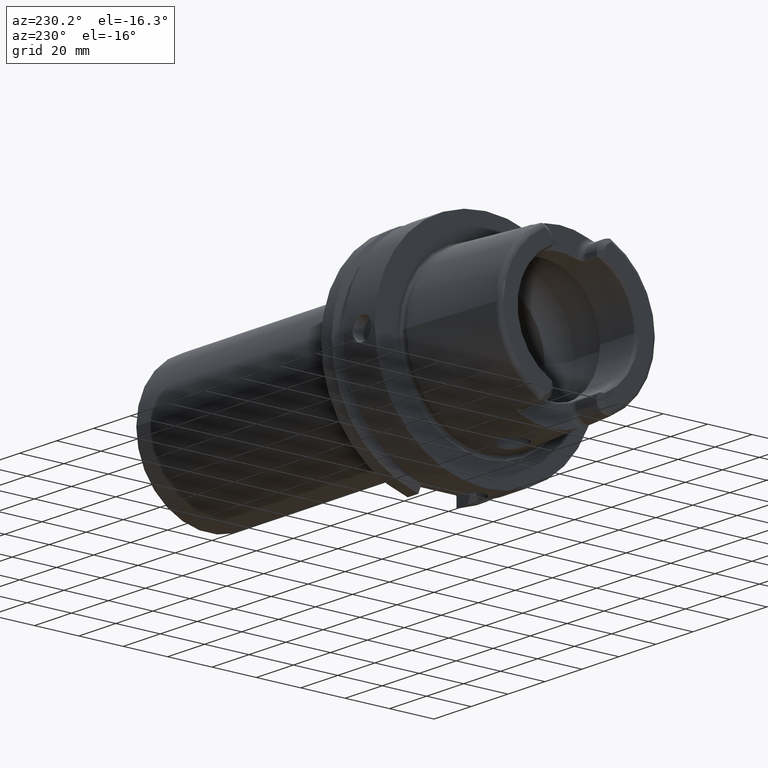
[diagram: clean part render]
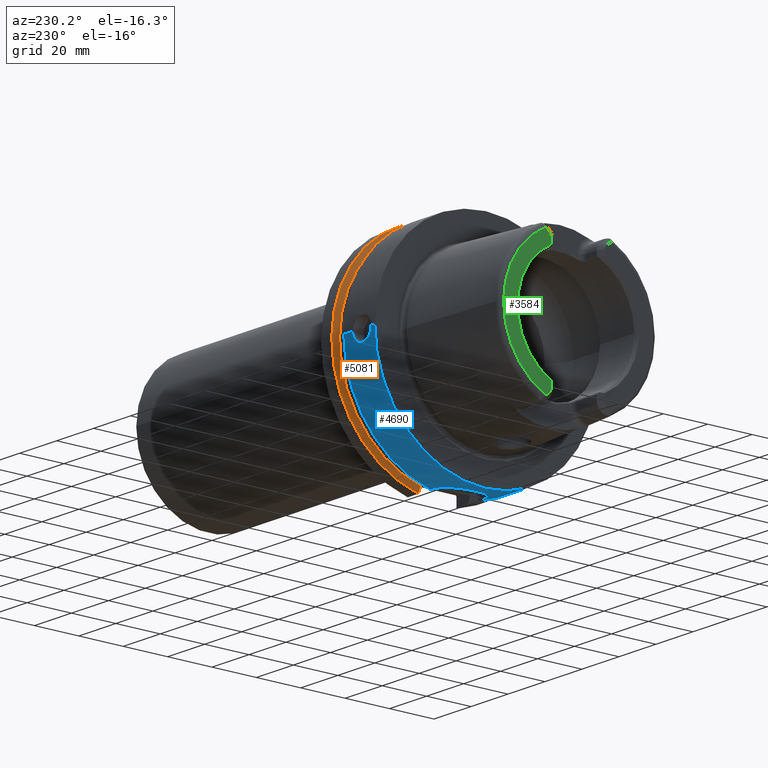
[diagram: same view with three faces highlighted in distinct colors, each labeled with its STEP entity id]
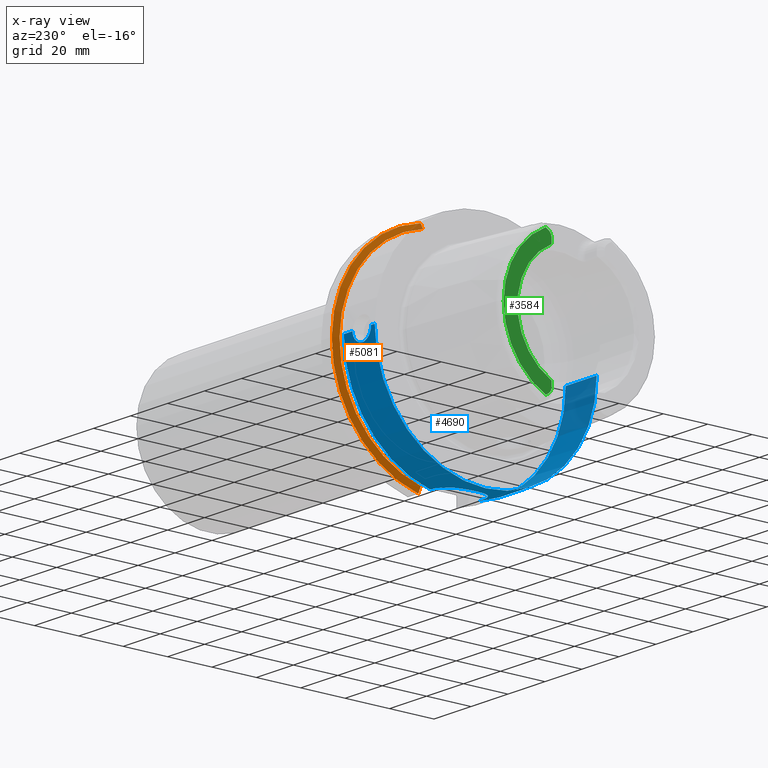
[diagram: x-ray of the same camera — body ghosted, the three highlighted faces saturated]
A machine part, auxiliary view with three faces highlighted in distinct colors.
The next image is the same camera in x-ray (body ghosted, the three faces saturated) — at least one of them is partly hidden behind the body in this view.
Their STEP definitions:

[orange] entity #5081 — the highlighted conical surface has half-angle 60 deg.
#1646=CARTESIAN_POINT('',(2.324759526419E1,1.1E1,-4.877499359303E1));
#1647=CARTESIAN_POINT('',(2.309075618244E1,1.1E1,-4.849651763825E1));
#1648=CARTESIAN_POINT('',(2.277996511889E1,1.1E1,-4.794446101512E1));
#1649=CARTESIAN_POINT('',(2.232251548208E1,1.1E1,-4.713119970766E1));
#1650=CARTESIAN_POINT('',(2.202321854676E1,1.1E1,-4.659863454325E1));
#1651=CARTESIAN_POINT('',(2.1875E1,1.1E1,-4.633477721644E1));
#1653=CARTESIAN_POINT('',(2.324759526419E1,0.E0,0.E0));
#1654=DIRECTION('',(1.E0,0.E0,0.E0));
#1655=DIRECTION('',(0.E0,2.2E-1,-9.754998718606E-1));
#1656=AXIS2_PLACEMENT_3D('',#1653,#1654,#1655);
#1658=CARTESIAN_POINT('',(2.1875E1,1.E1,4.656083740331E1));
#1659=CARTESIAN_POINT('',(2.202341485415E1,1.E1,4.682376142925E1));
#1660=CARTESIAN_POINT('',(2.232297392293E1,1.E1,4.735424823675E1));
#1661=CARTESIAN_POINT('',(2.278043311037E1,1.E1,4.816377318979E1));
#1662=CARTESIAN_POINT('',(2.309095690730E1,1.E1,4.871289474479E1));
#1663=CARTESIAN_POINT('',(2.324759526419E1,1.E1,4.898979485566E1));
#1665=CARTESIAN_POINT('',(2.1875E1,0.E0,0.E0));
#1666=DIRECTION('',(-1.E0,0.E0,0.E0));
#1667=DIRECTION('',(0.E0,2.099843560504E-1,9.777047459300E-1));
#1668=AXIS2_PLACEMENT_3D('',#1665,#1666,#1667);
#3310=CARTESIAN_POINT('',(2.1875E1,1.E1,4.656083740331E1));
#3311=VERTEX_POINT('',#3310);
#3313=VERTEX_POINT('',#1663);
#3322=CARTESIAN_POINT('',(2.324759526419E1,1.1E1,-4.877499359303E1));
#3324=VERTEX_POINT('',#3322);
#3350=CARTESIAN_POINT('',(2.1875E1,1.1E1,-4.633477721644E1));
#3351=VERTEX_POINT('',#3350);
#5069=CARTESIAN_POINT('',(2.256129763210E1,0.E0,0.E0));
#5070=DIRECTION('',(1.E0,0.E0,0.E0));
#5071=DIRECTION('',(0.E0,-1.E0,0.E0));
#5072=AXIS2_PLACEMENT_3D('',#5069,#5070,#5071);
#5073=CONICAL_SURFACE('',#5072,4.881129763210E1,6.E1);
#5074=ORIENTED_EDGE('',*,*,#4700,.F.);
#5075=ORIENTED_EDGE('',*,*,#4631,.T.);
#5077=ORIENTED_EDGE('',*,*,#5076,.F.);
#5078=ORIENTED_EDGE('',*,*,#5033,.T.);
#5079=EDGE_LOOP('',(#5074,#5075,#5077,#5078));
#5080=FACE_OUTER_BOUND('',#5079,.F.);
#5081=ADVANCED_FACE('',(#5080),#5073,.T.);
#1652=B_SPLINE_CURVE_WITH_KNOTS('',3,(#1646,#1647,#1648,#1649,#1650,#1651),
.UNSPECIFIED.,.F.,.F.,(4,1,1,4),(0.E0,3.333333333333E-1,6.666666666667E-1,1.E0),
.UNSPECIFIED.);
#1657=CIRCLE('',#1656,5.E1);
#1664=B_SPLINE_CURVE_WITH_KNOTS('',3,(#1658,#1659,#1660,#1661,#1662,#1663),
.UNSPECIFIED.,.F.,.F.,(4,1,1,4),(0.E0,3.333333333333E-1,6.666666666667E-1,1.E0),
.UNSPECIFIED.);
#1669=CIRCLE('',#1668,4.762259526419E1);
#4631=EDGE_CURVE('',#3324,#3313,#1657,.T.);
#4700=EDGE_CURVE('',#3324,#3351,#1652,.T.);
#5033=EDGE_CURVE('',#3311,#3351,#1669,.T.);
#5076=EDGE_CURVE('',#3311,#3313,#1664,.T.);

[blue] entity #4690 — the highlighted cylindrical surface (partial cylindrical patch) has radius 50 mm, axis along (1, 0, 0).
#910=CARTESIAN_POINT('',(2.842170943040E-14,0.E0,0.E0));
#911=DIRECTION('',(-1.E0,0.E0,0.E0));
#912=DIRECTION('',(0.E0,1.E0,0.E0));
#913=AXIS2_PLACEMENT_3D('',#910,#911,#912);
#965=CARTESIAN_POINT('',(2.E0,5.E1,1.118758432857E-13));
#967=CARTESIAN_POINT('',(1.2E1,5.E1,2.305800131571E-14));
#1149=DIRECTION('',(1.E0,0.E0,0.E0));
#1150=VECTOR('',#1149,7.524047358084E-1);
#1151=CARTESIAN_POINT('',(1.6E1,1.1E1,-4.877499359303E1));
#1152=LINE('',#1151,#1150);
#1153=CARTESIAN_POINT('',(1.675240473581E1,0.E0,0.E0));
#1154=DIRECTION('',(1.E0,0.E0,0.E0));
#1155=DIRECTION('',(0.E0,2.2E-1,-9.754998718606E-1));
#1156=AXIS2_PLACEMENT_3D('',#1153,#1154,#1155);
#1158=DIRECTION('',(-1.E0,0.E0,0.E0));
#1159=VECTOR('',#1158,4.752404735808E0);
#1160=CARTESIAN_POINT('',(1.675240473581E1,5.E1,0.E0));
#1161=LINE('',#1160,#1159);
#1162=CARTESIAN_POINT('',(7.E0,4.974937185533E1,-5.E0));
#1163=CARTESIAN_POINT('',(7.214633369567E0,4.974937185533E1,-5.E0));
#1164=CARTESIAN_POINT('',(7.640386298435E0,4.975213065018E1,-4.972666360467E0));
#1165=CARTESIAN_POINT('',(8.274641361953E0,4.976438841384E1,-4.849158121706E0));
#1166=CARTESIAN_POINT('',(8.886020855356E0,4.978391945578E1,-4.645521380047E0));
#1167=CARTESIAN_POINT('',(9.464921805396E0,4.980935892457E1,-4.365866273701E0));
#1168=CARTESIAN_POINT('',(1.000148682294E1,4.983894625348E1,-4.016101899832E0));
#1169=CARTESIAN_POINT('',(1.049544382004E1,4.987128929303E1,-3.594954537167E0));
#1170=CARTESIAN_POINT('',(1.093328252566E1,4.990407345488E1,-3.109850358381E0));
#1171=CARTESIAN_POINT('',(1.130435342350E1,4.993485871418E1,-2.572130277900E0));
#1172=CARTESIAN_POINT('',(1.160677173349E1,4.996197754497E1,-1.981903060800E0));
#1173=CARTESIAN_POINT('',(1.183330662283E1,4.998349884815E1,-1.340220481854E0));
#1174=CARTESIAN_POINT('',(1.197044850157E1,4.999703119876E1,
-6.688359514011E-1));
#1175=CARTESIAN_POINT('',(1.2E1,5.E1,-2.237498970126E-1));
#1176=CARTESIAN_POINT('',(1.2E1,5.E1,2.305800131571E-14));
#1178=CARTESIAN_POINT('',(2.E0,5.E1,1.118758432857E-13));
#1179=CARTESIAN_POINT('',(2.E0,5.E1,-2.234702192277E-1));
#1180=CARTESIAN_POINT('',(2.029478359112E0,4.999703853190E1,
-6.681473837066E-1));
#1181=CARTESIAN_POINT('',(2.166444197694E0,4.998352324893E1,-1.339309249725E0));
#1182=CARTESIAN_POINT('',(2.392942530114E0,4.996200329443E1,-1.981343201711E0));
#1183=CARTESIAN_POINT('',(2.695842610324E0,4.993484130346E1,-2.572495925426E0));
#1184=CARTESIAN_POINT('',(3.066846855438E0,4.990406337793E1,-3.109998926782E0));
#1185=CARTESIAN_POINT('',(3.504802790907E0,4.987127154916E1,-3.595208944890E0));
#1186=CARTESIAN_POINT('',(3.998946554545E0,4.983891901808E1,-4.016442348510E0));
#1187=CARTESIAN_POINT('',(4.535798414476E0,4.980932338391E1,-4.366269177248E0));
#1188=CARTESIAN_POINT('',(5.114389528668E0,4.978390508543E1,-4.645671467419E0));
#1189=CARTESIAN_POINT('',(5.725653660578E0,4.976438108882E1,-4.849233183616E0));
#1190=CARTESIAN_POINT('',(6.359805679124E0,4.975212880871E1,-4.972684387731E0));
#1191=CARTESIAN_POINT('',(6.785436141585E0,4.974937185533E1,-5.E0));
#1192=CARTESIAN_POINT('',(7.E0,4.974937185533E1,-5.E0));
#1194=DIRECTION('',(-1.E0,0.E0,-5.389684364428E-14));
#1195=VECTOR('',#1194,2.E0);
#1196=CARTESIAN_POINT('',(2.E0,5.E1,1.118758432857E-13));
#1197=LINE('',#1196,#1195);
#1198=DIRECTION('',(-1.E0,0.E0,0.E0));
#1199=VECTOR('',#1198,1.675240473581E1);
#1200=CARTESIAN_POINT('',(1.675240473581E1,-5.E1,-1.020538999289E-14));
#1201=LINE('',#1200,#1199);
#1202=CARTESIAN_POINT('',(1.675240473581E1,0.E0,0.E0));
#1203=DIRECTION('',(1.E0,0.E0,0.E0));
#1204=DIRECTION('',(0.E0,-1.E0,0.E0));
#1205=AXIS2_PLACEMENT_3D('',#1202,#1203,#1204);
#1207=DIRECTION('',(1.E0,0.E0,0.E0));
#1208=VECTOR('',#1207,7.524047358084E-1);
#1209=CARTESIAN_POINT('',(1.6E1,-1.1E1,-4.877499359303E1));
#1210=LINE('',#1209,#1208);
#1211=CARTESIAN_POINT('',(1.6E1,1.1E1,-4.877499359303E1));
#1212=CARTESIAN_POINT('',(1.559018257905E1,1.1E1,-4.877499359303E1));
#1213=CARTESIAN_POINT('',(1.477711159673E1,1.095451320529E1,-4.878528536585E1));
#1214=CARTESIAN_POINT('',(1.357067145529E1,1.075155562543E1,-4.883060913739E1));
#1215=CARTESIAN_POINT('',(1.239697044362E1,1.041701199330E1,-4.890337958253E1));
#1216=CARTESIAN_POINT('',(1.126604368867E1,9.954285023678E0,-4.900007168819E1));
#1217=CARTESIAN_POINT('',(1.018861460789E1,9.366719390129E0,-4.911629237336E1));
#1218=CARTESIAN_POINT('',(9.171169852965E0,8.653611601527E0,-4.924753373663E1));
#1219=CARTESIAN_POINT('',(8.238112427873E0,7.827355870653E0,-4.938617340423E1));
#1220=CARTESIAN_POINT('',(7.408534809738E0,6.906350690547E0,-4.952392252207E1));
#1221=CARTESIAN_POINT('',(6.684814288863E0,5.894847548323E0,-4.965510065551E1));
#1222=CARTESIAN_POINT('',(6.073071272628E0,4.794393782369E0,-4.977397254495E1));
#1223=CARTESIAN_POINT('',(5.592123651736E0,3.632677023721E0,-4.987254683568E1));
#1224=CARTESIAN_POINT('',(5.250238197135E0,2.439289241831E0,-4.994531736735E1));
#1225=CARTESIAN_POINT('',(5.045520699082E0,1.225562746985E0,-4.998995582807E1));
#1226=CARTESIAN_POINT('',(4.977227881444E0,-3.740276953115E-4,
-5.000502466790E1));
#1227=CARTESIAN_POINT('',(5.045567799397E0,-1.225855878190E0,
-4.998994549498E1));
#1228=CARTESIAN_POINT('',(5.250299426848E0,-2.439598673877E0,
-4.994530410544E1));
#1229=CARTESIAN_POINT('',(5.592303250762E0,-3.633222860669E0,
-4.987250891646E1));
#1230=CARTESIAN_POINT('',(6.073397920689E0,-4.795067840635E0,
-4.977390711218E1));
#1231=CARTESIAN_POINT('',(6.685094341996E0,-5.895262007410E0,
-4.965504880039E1));
#1232=CARTESIAN_POINT('',(7.408627914384E0,-6.906453417659E0,
-4.952390705198E1));
#1233=CARTESIAN_POINT('',(8.238178868202E0,-7.827424926999E0,
-4.938616267622E1));
#1234=CARTESIAN_POINT('',(9.171249006951E0,-8.653666912305E0,
-4.924752342943E1));
#1235=CARTESIAN_POINT('',(1.018844028681E1,-9.366593829070E0,
-4.911631544663E1));
#1236=CARTESIAN_POINT('',(1.126555151976E1,-9.954042725384E0,
-4.900012084109E1));
#1237=CARTESIAN_POINT('',(1.239641067197E1,-1.041682105138E1,
-4.890342051862E1));
#1238=CARTESIAN_POINT('',(1.357019214113E1,-1.075145104870E1,
-4.883063231386E1));
#1239=CARTESIAN_POINT('',(1.477674649303E1,-1.095448033737E1,
-4.878529280321E1));
#1240=CARTESIAN_POINT('',(1.559004302136E1,-1.1E1,-4.877499359303E1));
#1241=CARTESIAN_POINT('',(1.6E1,-1.1E1,-4.877499359303E1));
#3017=CARTESIAN_POINT('',(2.842170943040E-14,5.E1,0.E0));
#3018=CARTESIAN_POINT('',(2.842170943040E-14,-5.E1,0.E0));
#3019=VERTEX_POINT('',#3017);
#3020=VERTEX_POINT('',#3018);
#3236=CARTESIAN_POINT('',(1.675240473581E1,-5.E1,-1.020538999289E-14));
#3237=VERTEX_POINT('',#3236);
#3264=CARTESIAN_POINT('',(7.E0,4.974937185533E1,-5.E0));
#3265=VERTEX_POINT('',#3264);
#3266=VERTEX_POINT('',#965);
#3267=VERTEX_POINT('',#967);
#3268=CARTESIAN_POINT('',(1.675240473581E1,5.E1,0.E0));
#3269=VERTEX_POINT('',#3268);
#3318=CARTESIAN_POINT('',(1.6E1,1.1E1,-4.877499359303E1));
#3319=CARTESIAN_POINT('',(1.675240473581E1,1.1E1,-4.877499359303E1));
#3320=VERTEX_POINT('',#3318);
#3321=VERTEX_POINT('',#3319);
#3326=CARTESIAN_POINT('',(1.6E1,-1.1E1,-4.877499359303E1));
#3327=CARTESIAN_POINT('',(1.675240473581E1,-1.1E1,-4.877499359303E1));
#3328=VERTEX_POINT('',#3326);
#3329=VERTEX_POINT('',#3327);
#4665=CARTESIAN_POINT('',(-5.395E1,0.E0,0.E0));
#4666=DIRECTION('',(1.E0,0.E0,0.E0));
#4667=DIRECTION('',(0.E0,-1.E0,0.E0));
#4668=AXIS2_PLACEMENT_3D('',#4665,#4666,#4667);
#4669=CYLINDRICAL_SURFACE('',#4668,5.E1);
#4671=ORIENTED_EDGE('',*,*,#4670,.T.);
#4673=ORIENTED_EDGE('',*,*,#4672,.T.);
#4674=ORIENTED_EDGE('',*,*,#4489,.T.);
#4676=ORIENTED_EDGE('',*,*,#4675,.F.);
#4678=ORIENTED_EDGE('',*,*,#4677,.F.);
#4679=ORIENTED_EDGE('',*,*,#4483,.T.);
#4680=ORIENTED_EDGE('',*,*,#4458,.T.);
#4681=ORIENTED_EDGE('',*,*,#4480,.F.);
#4683=ORIENTED_EDGE('',*,*,#4682,.T.);
#4685=ORIENTED_EDGE('',*,*,#4684,.F.);
#4687=ORIENTED_EDGE('',*,*,#4686,.F.);
#4688=EDGE_LOOP('',(#4671,#4673,#4674,#4676,#4678,#4679,#4680,#4681,#4683,#4685,
#4687));
#4689=FACE_OUTER_BOUND('',#4688,.F.);
#4690=ADVANCED_FACE('',(#4689),#4669,.T.);
#914=CIRCLE('',#913,5.E1);
#1157=CIRCLE('',#1156,5.E1);
#1177=B_SPLINE_CURVE_WITH_KNOTS('',3,(#1162,#1163,#1164,#1165,#1166,#1167,#1168,
#1169,#1170,#1171,#1172,#1173,#1174,#1175,#1176),.UNSPECIFIED.,.F.,.F.,(4,1,1,1,
1,1,1,1,1,1,1,1,4),(0.E0,8.333333333333E-2,1.666666666667E-1,2.5E-1,
3.333333333333E-1,4.166666666667E-1,5.E-1,5.833333333333E-1,6.666666666667E-1,
7.5E-1,8.333333333333E-1,9.166666666667E-1,1.E0),.UNSPECIFIED.);
#1193=B_SPLINE_CURVE_WITH_KNOTS('',3,(#1178,#1179,#1180,#1181,#1182,#1183,#1184,
#1185,#1186,#1187,#1188,#1189,#1190,#1191,#1192),.UNSPECIFIED.,.F.,.F.,(4,1,1,1,
1,1,1,1,1,1,1,1,4),(0.E0,8.333333333333E-2,1.666666666667E-1,2.5E-1,
3.333333333333E-1,4.166666666667E-1,5.E-1,5.833333333333E-1,6.666666666667E-1,
7.5E-1,8.333333333333E-1,9.166666666667E-1,1.E0),.UNSPECIFIED.);
#1206=CIRCLE('',#1205,5.E1);
#1242=B_SPLINE_CURVE_WITH_KNOTS('',3,(#1211,#1212,#1213,#1214,#1215,#1216,#1217,
#1218,#1219,#1220,#1221,#1222,#1223,#1224,#1225,#1226,#1227,#1228,#1229,#1230,
#1231,#1232,#1233,#1234,#1235,#1236,#1237,#1238,#1239,#1240,#1241),
.UNSPECIFIED.,.F.,.F.,(4,1,1,1,1,1,1,1,1,1,1,1,1,1,1,1,1,1,1,1,1,1,1,1,1,1,1,1,
4),(0.E0,3.571428571429E-2,7.142857142857E-2,1.071428571429E-1,
1.428571428571E-1,1.785714285714E-1,2.142857142857E-1,2.5E-1,2.857142857143E-1,
3.214285714286E-1,3.571428571429E-1,3.928571428571E-1,4.285714285714E-1,
4.642857142857E-1,5.E-1,5.357142857143E-1,5.714285714286E-1,6.071428571429E-1,
6.428571428571E-1,6.785714285714E-1,7.142857142857E-1,7.5E-1,7.857142857143E-1,
8.214285714286E-1,8.571428571429E-1,8.928571428571E-1,9.285714285714E-1,
9.642857142857E-1,1.E0),.UNSPECIFIED.);
#4458=EDGE_CURVE('',#3019,#3020,#914,.T.);
#4480=EDGE_CURVE('',#3237,#3020,#1201,.T.);
#4483=EDGE_CURVE('',#3266,#3019,#1197,.T.);
#4489=EDGE_CURVE('',#3269,#3267,#1161,.T.);
#4670=EDGE_CURVE('',#3320,#3321,#1152,.T.);
#4672=EDGE_CURVE('',#3321,#3269,#1157,.T.);
#4675=EDGE_CURVE('',#3265,#3267,#1177,.T.);
#4677=EDGE_CURVE('',#3266,#3265,#1193,.T.);
#4682=EDGE_CURVE('',#3237,#3329,#1206,.T.);
#4684=EDGE_CURVE('',#3328,#3329,#1210,.T.);
#4686=EDGE_CURVE('',#3320,#3328,#1242,.T.);

[green] entity #3584 — the highlighted planar face has unit normal (1, 0, 0).
#100=DIRECTION('',(0.E0,0.E0,1.E0));
#101=VECTOR('',#100,2.370180025047E0);
#102=CARTESIAN_POINT('',(-5.E1,1.201E1,-2.696E1));
#103=LINE('',#102,#101);
#104=CARTESIAN_POINT('',(-5.E1,1.501E1,-2.696E1));
#105=DIRECTION('',(1.E0,0.E0,0.E0));
#106=DIRECTION('',(0.E0,-1.E0,0.E0));
#107=AXIS2_PLACEMENT_3D('',#104,#105,#106);
#109=DIRECTION('',(0.E0,-8.533905854017E-1,5.212720103245E-1));
#110=VECTOR('',#109,1.392150953463E0);
#111=CARTESIAN_POINT('',(-5.E1,1.463423248617E1,-3.024586108239E1));
#112=LINE('',#111,#110);
#113=DIRECTION('',(0.E0,-8.533905854017E-1,-5.212720103245E-1));
#114=VECTOR('',#113,1.392150953463E0);
#115=CARTESIAN_POINT('',(-5.E1,1.463423248617E1,3.024586108239E1));
#116=LINE('',#115,#114);
#117=CARTESIAN_POINT('',(-5.E1,1.501E1,2.696E1));
#118=DIRECTION('',(-1.E0,0.E0,0.E0));
#119=DIRECTION('',(0.E0,-1.E0,0.E0));
#120=AXIS2_PLACEMENT_3D('',#117,#118,#119);
#122=DIRECTION('',(0.E0,0.E0,1.E0));
#123=VECTOR('',#122,2.370180025047E0);
#124=CARTESIAN_POINT('',(-5.E1,1.201E1,2.458981997495E1));
#125=LINE('',#124,#123);
#157=CARTESIAN_POINT('',(-5.E1,0.E0,0.E0));
#158=DIRECTION('',(1.E0,0.E0,0.E0));
#159=DIRECTION('',(0.E0,4.388653384185E-1,-8.985528447091E-1));
#160=AXIS2_PLACEMENT_3D('',#157,#158,#159);
#340=CARTESIAN_POINT('',(-5.E1,0.E0,0.E0));
#341=DIRECTION('',(-1.E0,0.E0,0.E0));
#342=DIRECTION('',(0.E0,4.355401503799E-1,9.001693048572E-1));
#343=AXIS2_PLACEMENT_3D('',#340,#341,#342);
#3107=CARTESIAN_POINT('',(-5.E1,1.201E1,2.458981997495E1));
#3108=CARTESIAN_POINT('',(-5.E1,1.201E1,2.696E1));
#3109=VERTEX_POINT('',#3107);
#3110=VERTEX_POINT('',#3108);
#3111=CARTESIAN_POINT('',(-5.E1,1.344618396903E1,2.952017175621E1));
#3112=VERTEX_POINT('',#3111);
#3113=CARTESIAN_POINT('',(-5.E1,1.463423248617E1,3.024586108239E1));
#3114=VERTEX_POINT('',#3113);
#3198=CARTESIAN_POINT('',(-5.E1,1.201E1,-2.696E1));
#3199=CARTESIAN_POINT('',(-5.E1,1.201E1,-2.458981997495E1));
#3200=VERTEX_POINT('',#3198);
#3201=VERTEX_POINT('',#3199);
#3202=CARTESIAN_POINT('',(-5.E1,1.344618396903E1,-2.952017175621E1));
#3203=VERTEX_POINT('',#3202);
#3204=CARTESIAN_POINT('',(-5.E1,1.463423248617E1,-3.024586108239E1));
#3205=VERTEX_POINT('',#3204);
#3561=CARTESIAN_POINT('',(-5.E1,0.E0,0.E0));
#3562=DIRECTION('',(1.E0,0.E0,0.E0));
#3563=DIRECTION('',(0.E0,-1.E0,0.E0));
#3564=AXIS2_PLACEMENT_3D('',#3561,#3562,#3563);
#3565=PLANE('',#3564);
#3567=ORIENTED_EDGE('',*,*,#3566,.F.);
#3569=ORIENTED_EDGE('',*,*,#3568,.T.);
#3571=ORIENTED_EDGE('',*,*,#3570,.F.);
#3573=ORIENTED_EDGE('',*,*,#3572,.F.);
#3575=ORIENTED_EDGE('',*,*,#3574,.T.);
#3577=ORIENTED_EDGE('',*,*,#3576,.F.);
#3579=ORIENTED_EDGE('',*,*,#3578,.F.);
#3581=ORIENTED_EDGE('',*,*,#3580,.F.);
#3582=EDGE_LOOP('',(#3567,#3569,#3571,#3573,#3575,#3577,#3579,#3581));
#3583=FACE_OUTER_BOUND('',#3582,.F.);
#3584=ADVANCED_FACE('',(#3583),#3565,.F.);
#108=CIRCLE('',#107,3.E0);
#121=CIRCLE('',#120,3.E0);
#161=CIRCLE('',#160,2.736602540378E1);
#344=CIRCLE('',#343,3.360019156306E1);
#3566=EDGE_CURVE('',#3200,#3201,#103,.T.);
#3568=EDGE_CURVE('',#3200,#3203,#108,.T.);
#3570=EDGE_CURVE('',#3205,#3203,#112,.T.);
#3572=EDGE_CURVE('',#3114,#3205,#344,.T.);
#3574=EDGE_CURVE('',#3114,#3112,#116,.T.);
#3576=EDGE_CURVE('',#3110,#3112,#121,.T.);
#3578=EDGE_CURVE('',#3109,#3110,#125,.T.);
#3580=EDGE_CURVE('',#3201,#3109,#161,.T.);